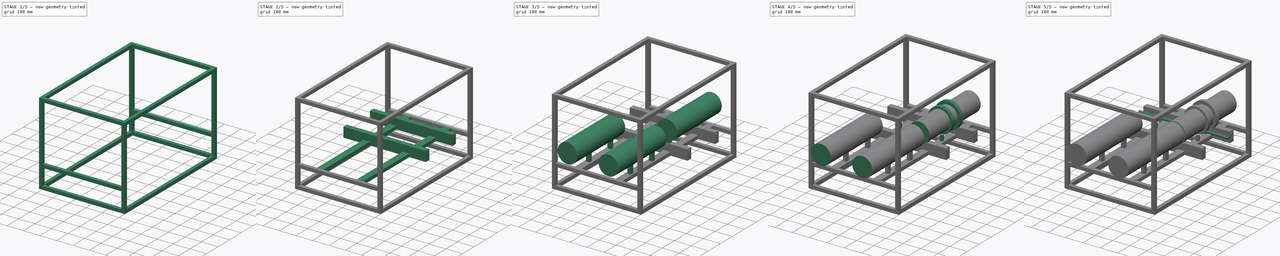
[diagram: build sequence overview — one tinted view per stage of 5, left to right]
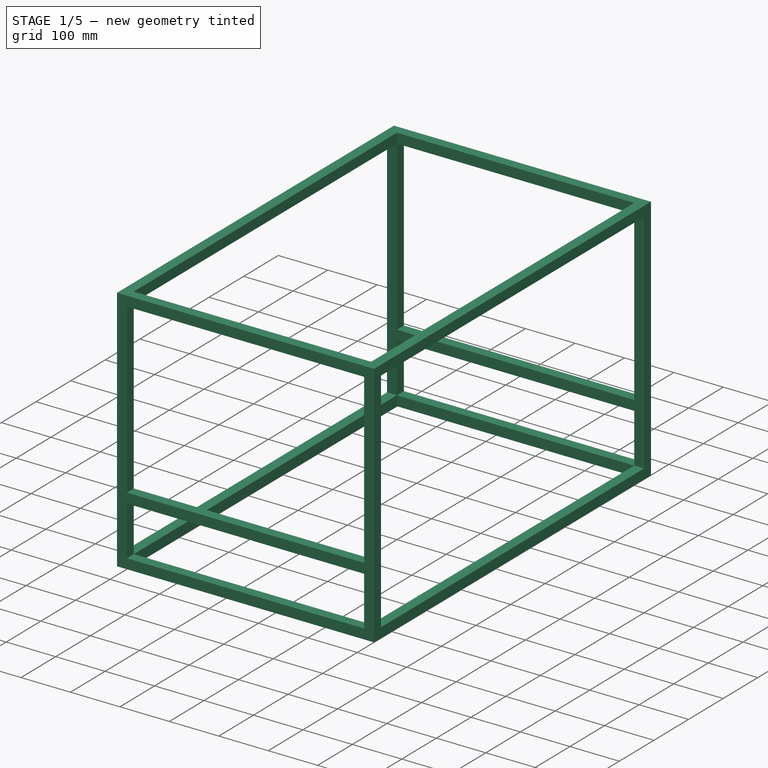
[diagram: stage 1 of 5 — iso view after this stage's code; geometry added in this stage tinted green]
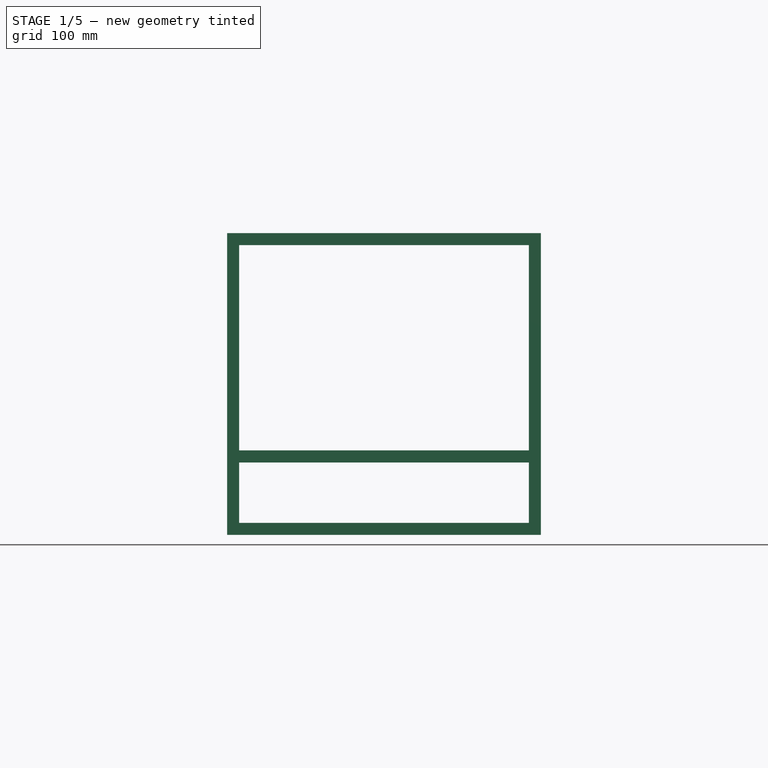
[diagram: stage 1 of 5 — front view after this stage's code; geometry added in this stage tinted green]
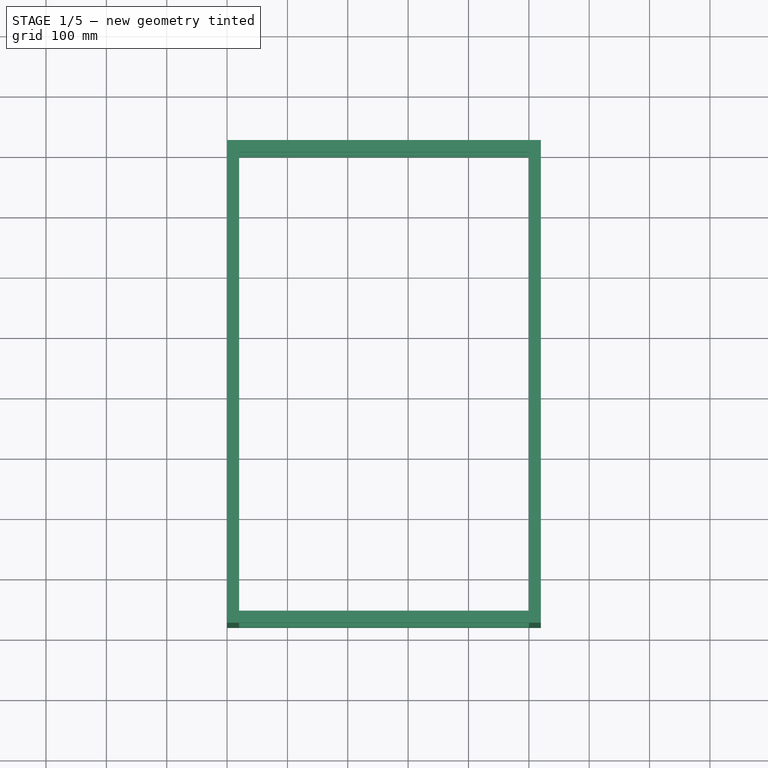
[diagram: stage 1 of 5 — top view after this stage's code; geometry added in this stage tinted green]
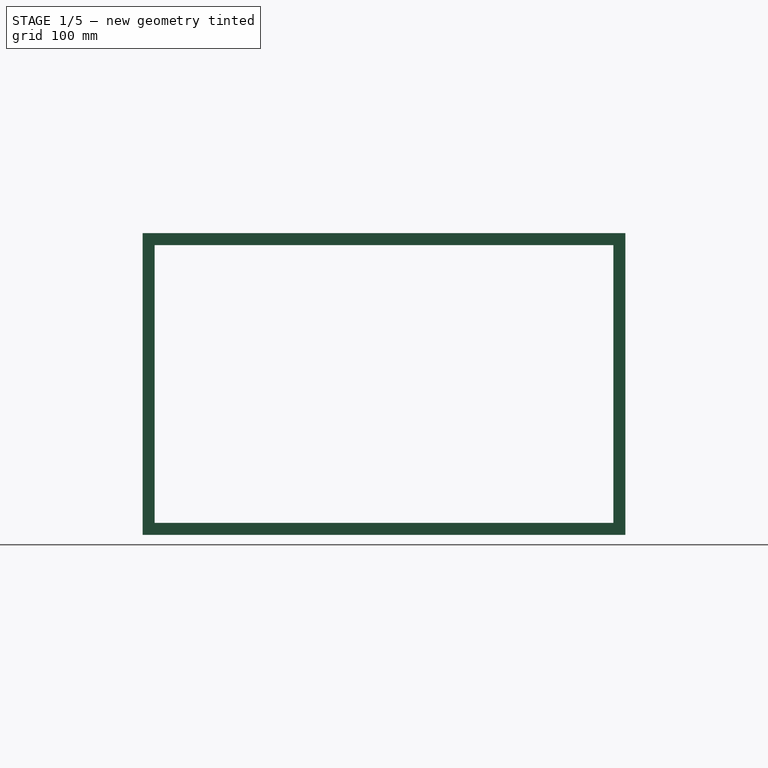
[diagram: stage 1 of 5 — right view after this stage's code; geometry added in this stage tinted green]
FCSTD DOCUMENT  (FreeCAD 1.0R39109 (Git))
Label: swnewfram
License: All rights reserved
LicenseURL: https://en.wikipedia.org/wiki/All_rights_reserved
objects: PartDesign::Pad×32, Sketcher::SketchObject×24, PartDesign::Pocket×3, PartDesign::Plane×2, PartDesign::Body×1
note: 156 computed .brp shape members not serialized (recipe doc carries the construction recipe); baked Part::Feature solids carry a one-line shape summary decoded from their .brp

FEATURE [Sketcher::SketchObject] Sketch
  ArcFitTolerance = 1e-06
  AttachmentSupport = -> [XY_Plane]
  FullyConstrained = true
  MakeInternals = false
  MapMode = 5
  sketch-geometry (4):
    g0: LineSegment StartX=0 StartY=0 StartZ=0 EndX=20 EndY=0 EndZ=0
    g1: LineSegment StartX=20 StartY=0 StartZ=0 EndX=20 EndY=20 EndZ=0
    g2: LineSegment StartX=20 StartY=20 StartZ=0 EndX=0 EndY=20 EndZ=0
    g3: LineSegment StartX=0 StartY=20 StartZ=0 EndX=0 EndY=0 EndZ=0
  constraints (11):
    c: Coincident(g0,g1)
    c: Coincident(g1,g2)
    c: Coincident(g2,g3)
    c: Coincident(g3,g0)
    c: Horizontal(g0)
    c: Horizontal(g2)
    c: Vertical(g1)
    c: Vertical(g3)
    c: Distance(g1,g3) = 20
    c: Distance(g0,g2) = 20
    c: Coincident(g0,g-1)
FEATURE [PartDesign::Pad] Pad
  Direction = (0,0,1)
  Length = 500
  Length2 = 10
  Profile = -> Sketch
  ReferenceAxis = -> Sketch [N_Axis]
  Refine = true
  Suppressed = false
  Type = 0
FEATURE [Sketcher::SketchObject] Sketch001
  ArcFitTolerance = 1e-06
  AttachmentSupport = -> [Pad]
  FullyConstrained = true
  MakeInternals = false
  MapMode = 5
  Placement = pos=(0,0,0) rot=(1,0,0;1.5708rad)
  sketch-geometry (8):
    g0: LineSegment StartX=0 StartY=0 StartZ=0 EndX=20 EndY=0 EndZ=0
    g1: LineSegment StartX=20 StartY=0 StartZ=0 EndX=20 EndY=20 EndZ=0
    g2: LineSegment StartX=20 StartY=20 StartZ=0 EndX=0 EndY=20 EndZ=0
    g3: LineSegment StartX=0 StartY=20 StartZ=0 EndX=0 EndY=0 EndZ=0
    g4: LineSegment StartX=0 StartY=500 StartZ=0 EndX=0 EndY=480 EndZ=0
    g5: LineSegment StartX=0 StartY=480 StartZ=0 EndX=20 EndY=480 EndZ=0
    g6: LineSegment StartX=20 StartY=480 StartZ=0 EndX=20 EndY=500 EndZ=0
    g7: LineSegment StartX=20 StartY=500 StartZ=0 EndX=0 EndY=500 EndZ=0
  constraints (23):
    c: Coincident(g0,g1)
    c: Coincident(g1,g2)
    c: Coincident(g2,g3)
    c: Coincident(g3,g0)
    c: Horizontal(g0)
    c: Horizontal(g2)
    c: Vertical(g1)
    c: Vertical(g3)
    c: Distance(g1,g3) = 20
    c: Distance(g0,g2) = 20
    c: Coincident(g0,g-1)
    c: Coincident(g4,g5)
    c: Coincident(g5,g6)
    c: Coincident(g6,g7)
    c: Coincident(g7,g4)
    c: Vertical(g4)
    c: Vertical(g6)
    c: Horizontal(g5)
    c: Horizontal(g7)
    c: Distance(g4,g6) = 20
    c: Distance(g5,g7) = 20
    c: DistanceX(g2,g4) = 0
    c: DistanceY(g0,g4) = 500
FEATURE [PartDesign::Pad] Pad001
  BaseFeature = -> Pad
  Direction = (0,-1,2e-16)
  Length = 780
  Length2 = 10
  Profile = -> Sketch001
  ReferenceAxis = -> Sketch001 [N_Axis]
  Refine = true
  Suppressed = false
  Type = 0
FEATURE [Sketcher::SketchObject] Sketch002
  ArcFitTolerance = 1e-06
  AttachmentSupport = -> [Pad001]
  FullyConstrained = true
  MakeInternals = false
  MapMode = 5
  Placement = pos=(0,4.4e-15,20) rot=(0,0,1;0rad)
  sketch-geometry (4):
    g0: LineSegment StartX=0 StartY=-760 StartZ=0 EndX=0 EndY=-780 EndZ=0
    g1: LineSegment StartX=0 StartY=-780 StartZ=0 EndX=20 EndY=-780 EndZ=0
    g2: LineSegment StartX=20 StartY=-780 StartZ=0 EndX=20 EndY=-760 EndZ=0
    g3: LineSegment StartX=20 StartY=-760 StartZ=0 EndX=0 EndY=-760 EndZ=0
  constraints (12):
    c: Coincident(g0,g1)
    c: Coincident(g1,g2)
    c: Coincident(g2,g3)
    c: Coincident(g3,g0)
    c: Vertical(g0)
    c: Vertical(g2)
    c: Horizontal(g1)
    c: Horizontal(g3)
    c: Distance(g0,g2) = 20
    c: Distance(g1,g3) = 20
    c: PointOnObject(g0,g-2)
    c: DistanceY(g0,g-1) = 760
FEATURE [PartDesign::Pad] Pad002
  BaseFeature = -> Pad001
  Direction = (0,0,1)
  Length = 480
  Length2 = 10
  Profile = -> Sketch002
  ReferenceAxis = -> Sketch002 [N_Axis]
  Refine = true
  Suppressed = false
  Type = 0
FEATURE [Sketcher::SketchObject] Sketch003
  ArcFitTolerance = 1e-06
  AttachmentSupport = -> [Pad002]
  FullyConstrained = true
  MakeInternals = false
  MapMode = 5
  Placement = pos=(0,0,0) rot=(0.57735,-0.57735,-0.57735;2.0944rad)
  sketch-geometry (16):
    g0: LineSegment StartX=0 StartY=0 StartZ=0 EndX=0 EndY=20 EndZ=0
    g1: LineSegment StartX=0 StartY=20 StartZ=0 EndX=-20 EndY=20 EndZ=0
    g2: LineSegment StartX=-20 StartY=20 StartZ=0 EndX=-20 EndY=0 EndZ=0
    g3: LineSegment StartX=-20 StartY=0 StartZ=0 EndX=0 EndY=0 EndZ=0
    g4: LineSegment StartX=760 StartY=20 StartZ=0 EndX=760 EndY=0 EndZ=0
    g5: LineSegment StartX=760 StartY=0 StartZ=0 EndX=780 EndY=0 EndZ=0
    g6: LineSegment StartX=780 StartY=0 StartZ=0 EndX=780 EndY=20 EndZ=0
    g7: LineSegment StartX=780 StartY=20 StartZ=0 EndX=760 EndY=20 EndZ=0
    g8: LineSegment StartX=0 StartY=480 StartZ=0 EndX=0 EndY=500 EndZ=0
    g9: LineSegment StartX=0 StartY=500 StartZ=0 EndX=-20 EndY=500 EndZ=0
    g10: LineSegment StartX=-20 StartY=500 StartZ=0 EndX=-20 EndY=480 EndZ=0
    g11: LineSegment StartX=-20 StartY=480 StartZ=0 EndX=0 EndY=480 EndZ=0
    g12: LineSegment StartX=760 StartY=500 StartZ=0 EndX=760 EndY=480 EndZ=0
    g13: LineSegment StartX=760 StartY=480 StartZ=0 EndX=780 EndY=480 EndZ=0
    g14: LineSegment StartX=780 StartY=480 StartZ=0 EndX=780 EndY=500 EndZ=0
    g15: LineSegment StartX=780 StartY=500 StartZ=0 EndX=760 EndY=500 EndZ=0
  constraints (47):
    c: Coincident(g0,g1)
    c: Coincident(g1,g2)
    c: Coincident(g2,g3)
    c: Coincident(g3,g0)
    c: Vertical(g0)
    c: Vertical(g2)
    c: Horizontal(g1)
    c: Horizontal(g3)
    c: Distance(g0,g2) = 20
    c: Distance(g1,g3) = 20
    c: Coincident(g0,g-1)
    c: Coincident(g4,g5)
    c: Coincident(g5,g6)
    c: Coincident(g6,g7)
    c: Coincident(g7,g4)
    c: Vertical(g4)
    c: Vertical(g6)
    c: Horizontal(g5)
    c: Horizontal(g7)
    c: Distance(g4,g6) = 20
    c: Distance(g5,g7) = 20
    c: PointOnObject(g4,g-1)
    c: DistanceX(g0,g4) = 760
    c: Coincident(g8,g9)
    c: Coincident(g9,g10)
    c: Coincident(g10,g11)
    c: Coincident(g11,g8)
    c: Vertical(g8)
    c: Vertical(g10)
    c: Horizontal(g9)
    c: Horizontal(g11)
    c: Distance(g8,g10) = 20
    c: Distance(g9,g11) = 20
    c: PointOnObject(g8,g-2)
    c: Coincident(g12,g13)
    c: Coincident(g13,g14)
    c: Coincident(g14,g15)
    c: Coincident(g15,g12)
    c: Vertical(g12)
    c: Vertical(g14)
    c: Horizontal(g13)
    c: Horizontal(g15)
    c: Distance(g12,g14) = 20
    c: Distance(g13,g15) = 20
    c: DistanceX(g4,g12) = 0
    c: DistanceY(g6,g13) = 460
    c: DistanceY(g1,g10) = 460
FEATURE [PartDesign::Pad] Pad003
  BaseFeature = -> Pad002
  Direction = (-1,0,0)
  Length = 500
  Length2 = 10
  Profile = -> Sketch003
  ReferenceAxis = -> Sketch003 [N_Axis]
  Refine = true
  Suppressed = false
  Type = 0
FEATURE [Sketcher::SketchObject] Sketch004
  ArcFitTolerance = 1e-06
  AttachmentSupport = -> [Pad003]
  FullyConstrained = true
  MakeInternals = false
  MapMode = 5
  Placement = pos=(0,0,0) rot=(1,0,0;1.5708rad)
  sketch-geometry (8):
    g0: LineSegment StartX=-500 StartY=20 StartZ=0 EndX=-500 EndY=0 EndZ=0
    g1: LineSegment StartX=-500 StartY=0 StartZ=0 EndX=-480 EndY=0 EndZ=0
    g2: LineSegment StartX=-480 StartY=0 StartZ=0 EndX=-480 EndY=20 EndZ=0
    g3: LineSegment StartX=-480 StartY=20 StartZ=0 EndX=-500 EndY=20 EndZ=0
    g4: LineSegment StartX=-500 StartY=500 StartZ=0 EndX=-500 EndY=480 EndZ=0
    g5: LineSegment StartX=-500 StartY=480 StartZ=0 EndX=-480 EndY=480 EndZ=0
    g6: LineSegment StartX=-480 StartY=480 StartZ=0 EndX=-480 EndY=500 EndZ=0
    g7: LineSegment StartX=-480 StartY=500 StartZ=0 EndX=-500 EndY=500 EndZ=0
  constraints (24):
    c: Coincident(g0,g1)
    c: Coincident(g1,g2)
    c: Coincident(g2,g3)
    c: Coincident(g3,g0)
    c: Vertical(g0)
    c: Vertical(g2)
    c: Horizontal(g1)
    c: Horizontal(g3)
    c: Distance(g0,g2) = 20
    c: Distance(g1,g3) = 20
    c: PointOnObject(g1,g-1)
    c: DistanceX(g1,g-1) = 480
    c: Coincident(g4,g5)
    c: Coincident(g5,g6)
    c: Coincident(g6,g7)
    c: Coincident(g7,g4)
    c: Vertical(g4)
    c: Vertical(g6)
    c: Horizontal(g5)
    c: Horizontal(g7)
    c: Distance(g4,g6) = 20
    c: Distance(g5,g7) = 20
    c: DistanceX(g2,g5) = 0
    c: DistanceY(g0,g4) = 460
FEATURE [PartDesign::Pad] Pad004
  BaseFeature = -> Pad003
  Direction = (0,-1,2e-16)
  Length = 760
  Length2 = 10
  Profile = -> Sketch004
  ReferenceAxis = -> Sketch004 [N_Axis]
  Refine = true
  Suppressed = false
  Type = 0
FEATURE [Sketcher::SketchObject] Sketch005
  ArcFitTolerance = 1e-06
  AttachmentSupport = -> [Pad004]
  FullyConstrained = true
  MakeInternals = false
  MapMode = 5
  Placement = pos=(0,0,480) rot=(1,0,0;3.14159rad)
  sketch-geometry (8):
    g0: LineSegment StartX=-500 StartY=-20 StartZ=0 EndX=-480 EndY=-20 EndZ=0
    g1: LineSegment StartX=-480 StartY=-20 StartZ=0 EndX=-480 EndY=0 EndZ=0
    g2: LineSegment StartX=-480 StartY=0 StartZ=0 EndX=-500 EndY=0 EndZ=0
    g3: LineSegment StartX=-500 StartY=0 StartZ=0 EndX=-500 EndY=-20 EndZ=0
    g4: LineSegment StartX=-500 StartY=780 StartZ=0 EndX=-500 EndY=760 EndZ=0
    g5: LineSegment StartX=-500 StartY=760 StartZ=0 EndX=-480 EndY=760 EndZ=0
    g6: LineSegment StartX=-480 StartY=760 StartZ=0 EndX=-480 EndY=780 EndZ=0
    g7: LineSegment StartX=-480 StartY=780 StartZ=0 EndX=-500 EndY=780 EndZ=0
  constraints (24):
    c: Coincident(g0,g1)
    c: Coincident(g1,g2)
    c: Coincident(g2,g3)
    c: Coincident(g3,g0)
    c: Horizontal(g0)
    c: Horizontal(g2)
    c: Vertical(g1)
    c: Vertical(g3)
    c: Distance(g1,g3) = 20
    c: Distance(g0,g2) = 20
    c: Coincident(g4,g5)
    c: Coincident(g5,g6)
    c: Coincident(g6,g7)
    c: Coincident(g7,g4)
    c: Vertical(g4)
    c: Vertical(g6)
    c: Horizontal(g5)
    c: Horizontal(g7)
    c: Distance(g4,g6) = 20
    c: Distance(g5,g7) = 20
    c: DistanceX(g5,g1) = 0
    c: DistanceY(g1,g5) = 760
    c: DistanceY(g0,g-1) = 20
    c: DistanceX(g0,g-1) = 480
FEATURE [PartDesign::Pad] Pad005
  BaseFeature = -> Pad004
  Direction = (0,0,-1)
  Length = 460
  Length2 = 10
  Profile = -> Sketch005
  ReferenceAxis = -> Sketch005 [N_Axis]
  Refine = true
  Suppressed = false
  Type = 0
FEATURE [Sketcher::SketchObject] Sketch006
  ArcFitTolerance = 1e-06
  AttachmentSupport = -> [Pad005]
  FullyConstrained = true
  MakeInternals = false
  MapMode = 5
  Placement = pos=(-480,0,0) rot=(0.57735,0.57735,0.57735;2.0944rad)
  sketch-geometry (8):
    g0: LineSegment StartX=-780 StartY=140 StartZ=0 EndX=-780 EndY=120 EndZ=0
    g1: LineSegment StartX=-780 StartY=120 StartZ=0 EndX=-760 EndY=120 EndZ=0
    g2: LineSegment StartX=-760 StartY=120 StartZ=0 EndX=-760 EndY=140 EndZ=0
    g3: LineSegment StartX=-760 StartY=140 StartZ=0 EndX=-780 EndY=140 EndZ=0
    g4: LineSegment StartX=0 StartY=140 StartZ=0 EndX=0 EndY=120 EndZ=0
    g5: LineSegment StartX=0 StartY=120 StartZ=0 EndX=20 EndY=120 EndZ=0
    g6: LineSegment StartX=20 StartY=120 StartZ=0 EndX=20 EndY=140 EndZ=0
    g7: LineSegment StartX=20 StartY=140 StartZ=0 EndX=0 EndY=140 EndZ=0
  constraints (24):
    c: Coincident(g0,g1)
    c: Coincident(g1,g2)
    c: Coincident(g2,g3)
    c: Coincident(g3,g0)
    c: Vertical(g0)
    c: Vertical(g2)
    c: Horizontal(g1)
    c: Horizontal(g3)
    c: Distance(g0,g2) = 20
    c: Distance(g1,g3) = 20
    c: Coincident(g4,g5)
    c: Coincident(g5,g6)
    c: Coincident(g6,g7)
    c: Coincident(g7,g4)
    c: Vertical(g4)
    c: Vertical(g6)
    c: Horizontal(g5)
    c: Horizontal(g7)
    c: Distance(g4,g6) = 20
    c: Distance(g5,g7) = 20
    c: PointOnObject(g4,g-2)
    c: DistanceY(g-1,g5) = 120
    c: DistanceY(g1,g4) = 20
    c: DistanceX(g1,g4) = 760
FEATURE [PartDesign::Pad] Pad006
  BaseFeature = -> Pad005
  Direction = (1,0,0)
  Length = 480
  Length2 = 10
  Profile = -> Sketch006
  ReferenceAxis = -> Sketch006 [N_Axis]
  Refine = true
  Suppressed = false
  Type = 0
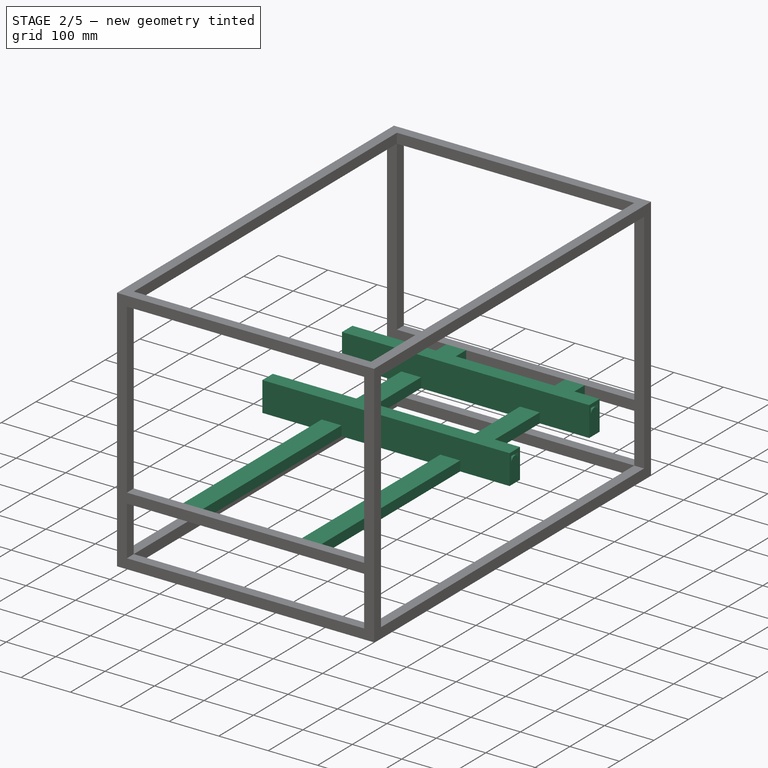
[diagram: stage 2 of 5 — iso view after this stage's code; geometry added in this stage tinted green]
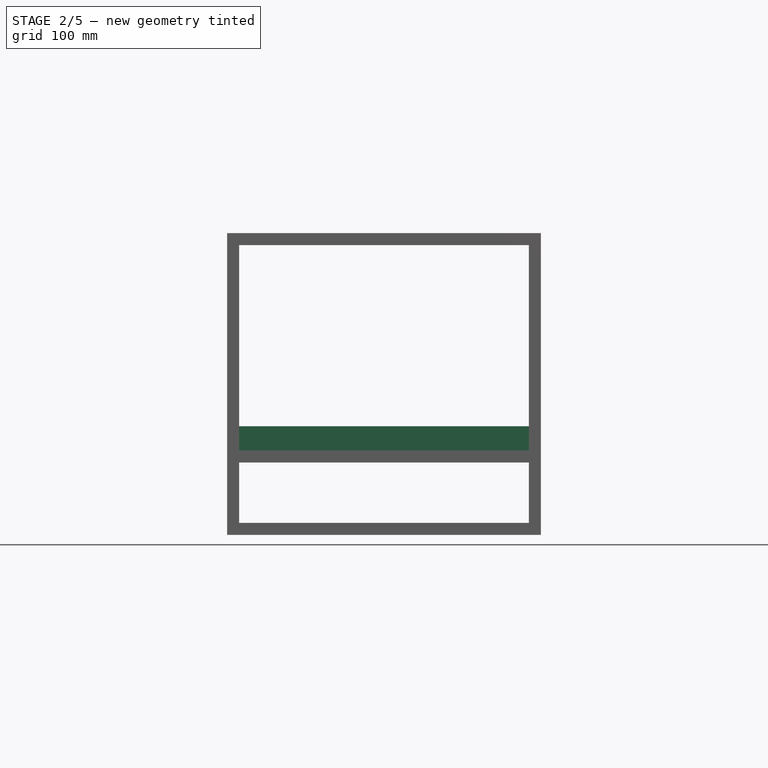
[diagram: stage 2 of 5 — front view after this stage's code; geometry added in this stage tinted green]
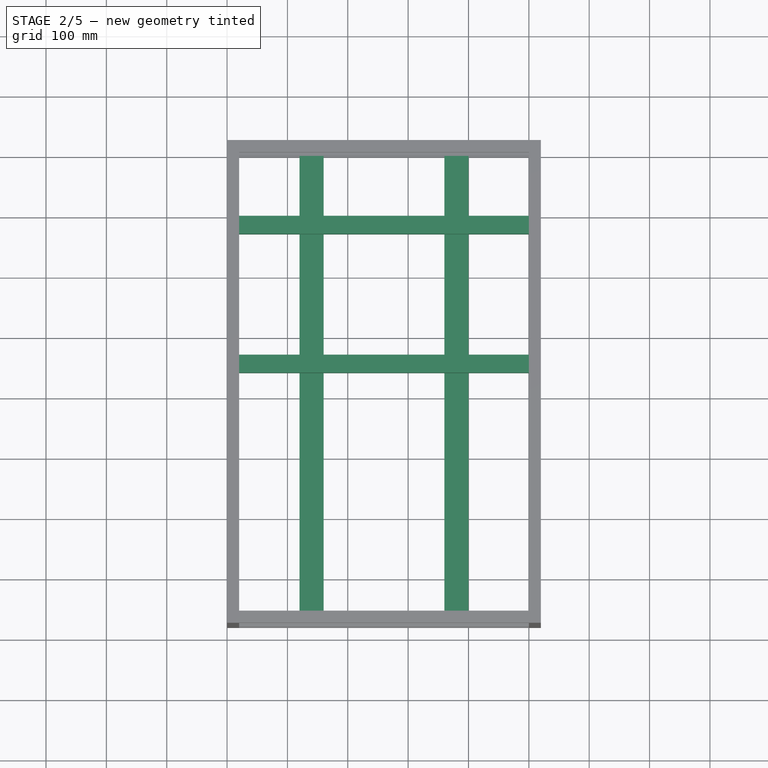
[diagram: stage 2 of 5 — top view after this stage's code; geometry added in this stage tinted green]
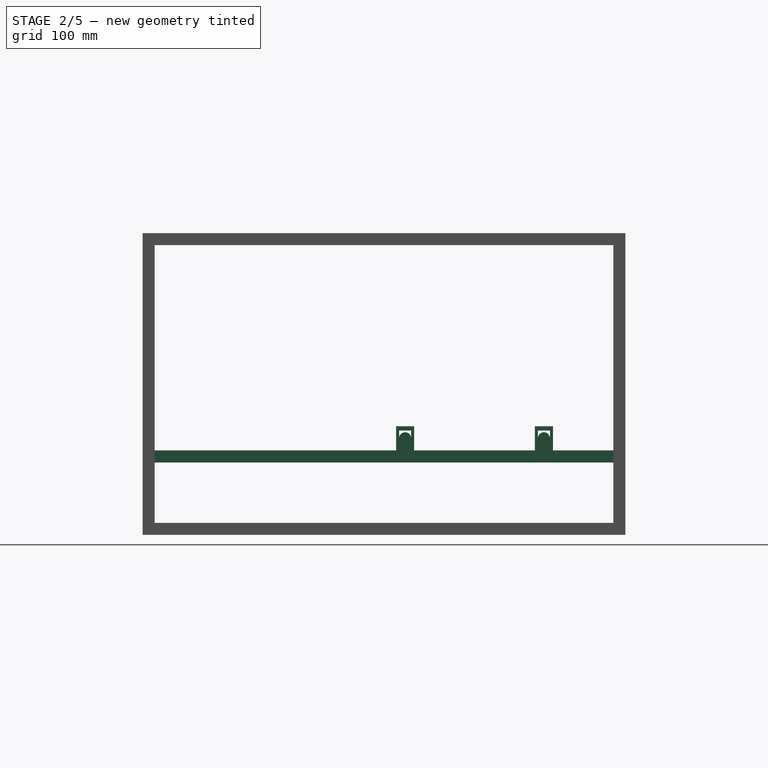
[diagram: stage 2 of 5 — right view after this stage's code; geometry added in this stage tinted green]
FEATURE [Sketcher::SketchObject] Sketch007
  ArcFitTolerance = 1e-06
  AttachmentSupport = -> [Pad006]
  FullyConstrained = true
  MakeInternals = false
  MapMode = 5
  Placement = pos=(0,-760,0) rot=(0,0.707107,0.707107;3.14159rad)
  sketch-geometry (8):
    g0: LineSegment StartX=100 StartY=140 StartZ=0 EndX=100 EndY=120 EndZ=0
    g1: LineSegment StartX=100 StartY=120 StartZ=0 EndX=140 EndY=120 EndZ=0
    g2: LineSegment StartX=140 StartY=120 StartZ=0 EndX=140 EndY=140 EndZ=0
    g3: LineSegment StartX=140 StartY=140 StartZ=0 EndX=100 EndY=140 EndZ=0
    g4: LineSegment StartX=340 StartY=140 StartZ=0 EndX=340 EndY=120 EndZ=0
    g5: LineSegment StartX=340 StartY=120 StartZ=0 EndX=380 EndY=120 EndZ=0
    g6: LineSegment StartX=380 StartY=120 StartZ=0 EndX=380 EndY=140 EndZ=0
    g7: LineSegment StartX=380 StartY=140 StartZ=0 EndX=340 EndY=140 EndZ=0
  constraints (24):
    c: Coincident(g0,g1)
    c: Coincident(g1,g2)
    c: Coincident(g2,g3)
    c: Coincident(g3,g0)
    c: Vertical(g0)
    c: Vertical(g2)
    c: Horizontal(g1)
    c: Horizontal(g3)
    c: Distance(g0,g2) = 40
    c: Distance(g1,g3) = 20
    c: Coincident(g4,g5)
    c: Coincident(g5,g6)
    c: Coincident(g6,g7)
    c: Coincident(g7,g4)
    c: Vertical(g4)
    c: Vertical(g6)
    c: Horizontal(g5)
    c: Horizontal(g7)
    c: Distance(g4,g6) = 40
    c: Distance(g5,g7) = 20
    c: DistanceX(g-1,g0) = 100
    c: DistanceX(g2,g4) = 200
    c: DistanceY(g4,g1) = 0
    c: DistanceY(g-1,g0) = 120
FEATURE [PartDesign::Pad] Pad007
  BaseFeature = -> Pad006
  Direction = (0,1,-2e-16)
  Length = 760
  Length2 = 10
  Profile = -> Sketch007
  ReferenceAxis = -> Sketch007 [N_Axis]
  Refine = true
  Suppressed = false
  Type = 0
FEATURE [Sketcher::SketchObject] Sketch008
  ArcFitTolerance = 1e-06
  AttachmentSupport = -> [Pad007]
  FullyConstrained = true
  MakeInternals = false
  MapMode = 5
  Placement = pos=(0,0,140) rot=(0,0,1;0rad)
  sketch-geometry (8):
    g0: LineSegment StartX=-500 StartY=-130 StartZ=0 EndX=0 EndY=-130 EndZ=0
    g1: LineSegment StartX=0 StartY=-130 StartZ=0 EndX=0 EndY=-100 EndZ=0
    g2: LineSegment StartX=0 StartY=-100 StartZ=0 EndX=-500 EndY=-100 EndZ=0
    g3: LineSegment StartX=-500 StartY=-100 StartZ=0 EndX=-500 EndY=-130 EndZ=0
    g4: LineSegment StartX=-500 StartY=-330 StartZ=0 EndX=-500 EndY=-360 EndZ=0
    g5: LineSegment StartX=-500 StartY=-360 StartZ=0 EndX=0 EndY=-360 EndZ=0
    g6: LineSegment StartX=0 StartY=-360 StartZ=0 EndX=0 EndY=-330 EndZ=0
    g7: LineSegment StartX=0 StartY=-330 StartZ=0 EndX=-500 EndY=-330 EndZ=0
  constraints (24):
    c: Coincident(g0,g1)
    c: Coincident(g1,g2)
    c: Coincident(g2,g3)
    c: Coincident(g3,g0)
    c: Horizontal(g0)
    c: Horizontal(g2)
    c: Vertical(g1)
    c: Vertical(g3)
    c: Distance(g1,g3) = 500
    c: Distance(g0,g2) = 30
    c: Coincident(g4,g5)
    c: Coincident(g5,g6)
    c: Coincident(g6,g7)
    c: Coincident(g7,g4)
    c: Vertical(g4)
    c: Vertical(g6)
    c: Horizontal(g5)
    c: Horizontal(g7)
    c: Distance(g4,g6) = 500
    c: Distance(g5,g7) = 30
    c: DistanceX(g0,g6) = 0
    c: DistanceY(g1,g-1) = 100
    c: DistanceY(g6,g0) = 200
    c: DistanceX(g-1,g1) = 0
FEATURE [PartDesign::Pad] Pad008
  BaseFeature = -> Pad007
  Direction = (0,0,1)
  Length = 20
  Length2 = 10
  Profile = -> Sketch008
  ReferenceAxis = -> Sketch008 [N_Axis]
  Refine = true
  Suppressed = false
  Type = 0
FEATURE [PartDesign::Pad] Pad009
  BaseFeature = -> Pad008
  Direction = (0,0,1)
  Length = 20
  Length2 = 10
  Profile = -> Sketch008
  ReferenceAxis = -> Sketch008 [N_Axis]
  Refine = true
  Reversed = true
  Suppressed = false
  Type = 0
FEATURE [Sketcher::SketchObject] Sketch009
  ArcFitTolerance = 1e-06
  AttachmentSupport = -> [Pad009]
  FullyConstrained = true
  MakeInternals = false
  MapMode = 5
  Placement = pos=(0,0,0) rot=(0.57735,0.57735,0.57735;2.0944rad)
  sketch-geometry (2):
    g0: Circle CenterX=-345 CenterY=160 CenterZ=0 NormalX=0 NormalY=0 NormalZ=1 AngleXU=0 Radius=10
    g1: Circle CenterX=-115 CenterY=160 CenterZ=0 NormalX=0 NormalY=0 NormalZ=1 AngleXU=0 Radius=10
  constraints (6):
    c: Diameter(g0) = 20
    c: Diameter(g1) = 20
    c: DistanceY(g1,g0) = 0
    c: DistanceY(g-1,g1) = 160
    c: DistanceX(g1,g-1) = 115
    c: DistanceX(g0,g1) = 230
FEATURE [PartDesign::Pad] Pad010
  BaseFeature = -> Pad009
  Direction = (1,0,0)
  Length = 500
  Length2 = 10
  Profile = -> Sketch009
  ReferenceAxis = -> Sketch009 [N_Axis]
  Refine = true
  Reversed = true
  Suppressed = false
  Type = 0
FEATURE [PartDesign::Pad] Pad011
  BaseFeature = -> Pad010
  Direction = (0,0,1)
  Length = 20
  Length2 = 10
  Profile = -> Pad010 [Face56,Face57,Face61,Face60]
  Refine = true
  Suppressed = false
  Type = 0
FEATURE [Sketcher::SketchObject] Sketch010
  ArcFitTolerance = 1e-06
  AttachmentSupport = -> [Pad011]
  FullyConstrained = true
  MakeInternals = false
  MapMode = 5
  Placement = pos=(0,-335,0) rot=(1,0,0;1.5708rad)
  sketch-geometry (4):
    g0: LineSegment StartX=-500 StartY=180 StartZ=0 EndX=-500 EndY=173 EndZ=0
    g1: LineSegment StartX=-500 StartY=173 StartZ=0 EndX=0 EndY=173 EndZ=0
    g2: LineSegment StartX=0 StartY=173 StartZ=0 EndX=0 EndY=180 EndZ=0
    g3: LineSegment StartX=0 StartY=180 StartZ=0 EndX=-500 EndY=180 EndZ=0
  constraints (12):
    c: Coincident(g0,g1)
    c: Coincident(g1,g2)
    c: Coincident(g2,g3)
    c: Coincident(g3,g0)
    c: Vertical(g0)
    c: Vertical(g2)
    c: Horizontal(g1)
    c: Horizontal(g3)
    c: Distance(g0,g2) = 500
    c: Distance(g1,g3) = 7
    c: DistanceX(g-1,g1) = 0
    c: DistanceY(g-1,g2) = 180
FEATURE [PartDesign::Pad] Pad012
  BaseFeature = -> Pad011
  Direction = (0,-1,2e-16)
  Length = 20
  Length2 = 10
  Profile = -> Sketch010
  ReferenceAxis = -> Sketch010 [N_Axis]
  Refine = true
  Suppressed = false
  Type = 0
FEATURE [Sketcher::SketchObject] Sketch011
  ArcFitTolerance = 1e-06
  AttachmentSupport = -> [Pad012]
  FullyConstrained = true
  MakeInternals = false
  MapMode = 5
  Placement = pos=(0,-105,0) rot=(1,0,0;1.5708rad)
  sketch-geometry (4):
    g0: LineSegment StartX=-500 StartY=180 StartZ=0 EndX=-500 EndY=173 EndZ=0
    g1: LineSegment StartX=-500 StartY=173 StartZ=0 EndX=0 EndY=173 EndZ=0
    g2: LineSegment StartX=0 StartY=173 StartZ=0 EndX=0 EndY=180 EndZ=0
    g3: LineSegment StartX=0 StartY=180 StartZ=0 EndX=-500 EndY=180 EndZ=0
  constraints (12):
    c: Coincident(g0,g1)
    c: Coincident(g1,g2)
    c: Coincident(g2,g3)
    c: Coincident(g3,g0)
    c: Vertical(g0)
    c: Vertical(g2)
    c: Horizontal(g1)
    c: Horizontal(g3)
    c: Distance(g0,g2) = 500
    c: Distance(g1,g3) = 7
    c: DistanceX(g-1,g2) = 0
    c: DistanceY(g-1,g1) = 173
FEATURE [PartDesign::Pad] Pad013
  BaseFeature = -> Pad012
  Direction = (0,-1,2e-16)
  Length = 20
  Length2 = 10
  Profile = -> Sketch011
  ReferenceAxis = -> Sketch011 [N_Axis]
  Refine = true
  Suppressed = false
  Type = 0
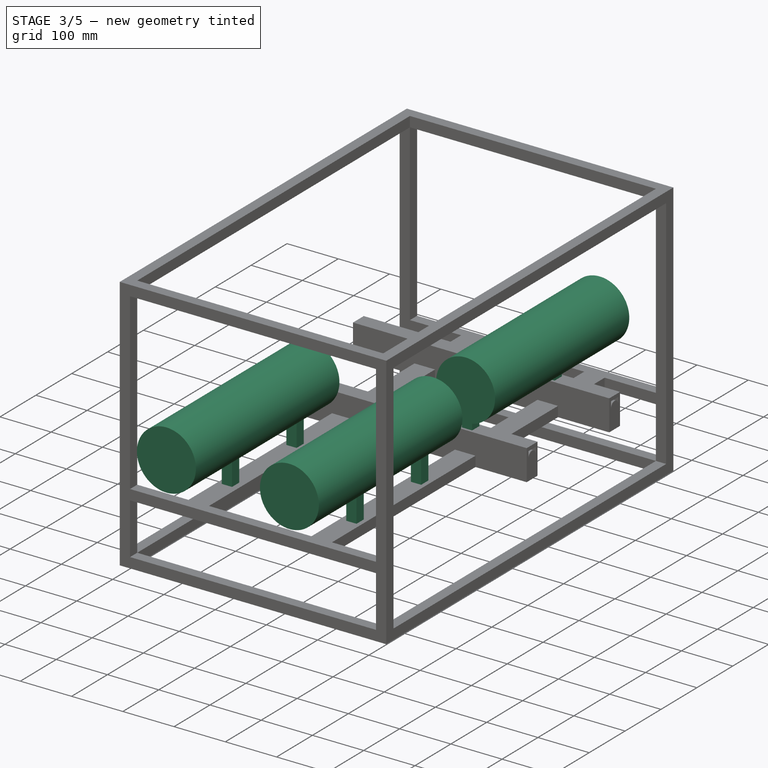
[diagram: stage 3 of 5 — iso view after this stage's code; geometry added in this stage tinted green]
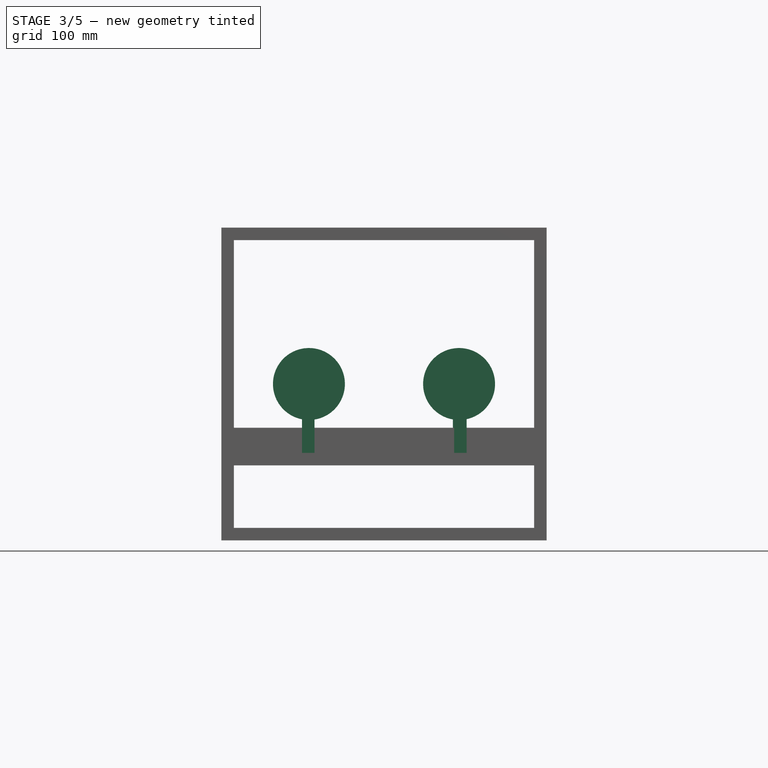
[diagram: stage 3 of 5 — front view after this stage's code; geometry added in this stage tinted green]
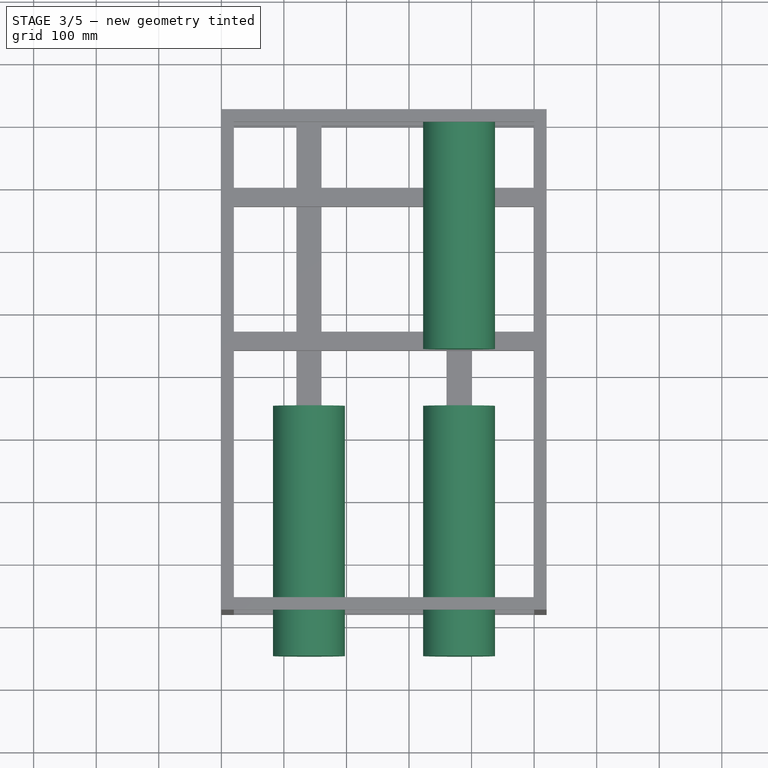
[diagram: stage 3 of 5 — top view after this stage's code; geometry added in this stage tinted green]
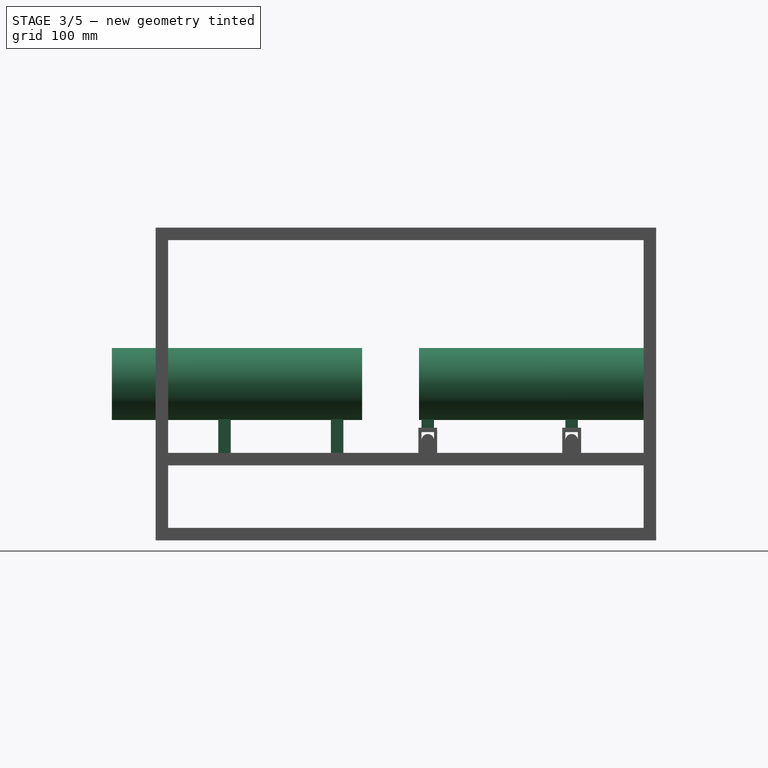
[diagram: stage 3 of 5 — right view after this stage's code; geometry added in this stage tinted green]
FEATURE [Sketcher::SketchObject] Sketch012
  ArcFitTolerance = 1e-06
  AttachmentSupport = -> [Pad013]
  FullyConstrained = true
  MakeInternals = false
  MapMode = 5
  Placement = pos=(0,0,180) rot=(0,0,1;0rad)
  sketch-geometry (8):
    g0: LineSegment StartX=-130 StartY=-105 StartZ=0 EndX=-130 EndY=-125 EndZ=0
    g1: LineSegment StartX=-130 StartY=-125 StartZ=0 EndX=-110 EndY=-125 EndZ=0
    g2: LineSegment StartX=-110 StartY=-125 StartZ=0 EndX=-110 EndY=-105 EndZ=0
    g3: LineSegment StartX=-110 StartY=-105 StartZ=0 EndX=-130 EndY=-105 EndZ=0
    g4: LineSegment StartX=-130 StartY=-335 StartZ=0 EndX=-130 EndY=-355 EndZ=0
    g5: LineSegment StartX=-130 StartY=-355 StartZ=0 EndX=-110 EndY=-355 EndZ=0
    g6: LineSegment StartX=-110 StartY=-355 StartZ=0 EndX=-110 EndY=-335 EndZ=0
    g7: LineSegment StartX=-110 StartY=-335 StartZ=0 EndX=-130 EndY=-335 EndZ=0
  constraints (24):
    c: Coincident(g0,g1)
    c: Coincident(g1,g2)
    c: Coincident(g2,g3)
    c: Coincident(g3,g0)
    c: Vertical(g0)
    c: Vertical(g2)
    c: Horizontal(g1)
    c: Horizontal(g3)
    c: Distance(g0,g2) = 20
    c: Distance(g1,g3) = 20
    c: Coincident(g4,g5)
    c: Coincident(g5,g6)
    c: Coincident(g6,g7)
    c: Coincident(g7,g4)
    c: Vertical(g4)
    c: Vertical(g6)
    c: Horizontal(g5)
    c: Horizontal(g7)
    c: Distance(g4,g6) = 20
    c: Distance(g5,g7) = 20
    c: DistanceX(g1,g6) = 0
    c: DistanceX(g2,g-1) = 110
    c: DistanceY(g2,g-1) = 105
    c: DistanceY(g6,g1) = 210
FEATURE [PartDesign::Pad] Pad014
  BaseFeature = -> Pad013
  Direction = (0,0,1)
  Length = 70
  Length2 = 10
  Profile = -> Sketch012
  ReferenceAxis = -> Sketch012 [N_Axis]
  Refine = true
  Suppressed = false
  Type = 0
FEATURE [Sketcher::SketchObject] Sketch013
  ArcFitTolerance = 1e-06
  AttachmentSupport = -> [Pad014]
  FullyConstrained = true
  MakeInternals = false
  MapMode = 5
  Placement = pos=(0,-335,0) rot=(0,0.707107,0.707107;3.14159rad)
  sketch-geometry (1):
    g0: Circle CenterX=120 CenterY=250 CenterZ=0 NormalX=0 NormalY=0 NormalZ=1 AngleXU=0 Radius=57.5
  constraints (3):
    c: Diameter(g0) = 115
    c: DistanceX(g-1,g0) = 120
    c: DistanceY(g-1,g0) = 250
FEATURE [PartDesign::Pad] Pad015
  BaseFeature = -> Pad014
  Direction = (0,1,-2e-16)
  Length = 350
  Length2 = 10
  Profile = -> Sketch013
  ReferenceAxis = -> Sketch013 [N_Axis]
  Refine = true
  Suppressed = false
  Type = 0
FEATURE [PartDesign::Pad] Pad016
  BaseFeature = -> Pad015
  Direction = (0,1,-2e-16)
  Length = 24
  Length2 = 10
  Profile = -> Sketch013
  ReferenceAxis = -> Sketch013 [N_Axis]
  Refine = true
  Reversed = true
  Suppressed = false
  Type = 0
FEATURE [Sketcher::SketchObject] Sketch014
  ArcFitTolerance = 1e-06
  AttachmentSupport = -> [Pad016]
  FullyConstrained = true
  MakeInternals = false
  MapMode = 5
  Placement = pos=(0,-359,0) rot=(1,0,0;1.5708rad)
  sketch-geometry (1):
    g0: Circle CenterX=120 CenterY=250 CenterZ=0 NormalX=0 NormalY=0 NormalZ=1 AngleXU=0 Radius=35
  constraints (3):
    c: Diameter(g0) = 70
    c: DistanceX(g-1,g0) = 120
    c: DistanceY(g-1,g0) = 250
FEATURE [PartDesign::Pad] Pad017
  BaseFeature = -> Pad016
  Direction = (0,-1,2e-16)
  Length = 50
  Length2 = 10
  Profile = -> Sketch014
  ReferenceAxis = -> Sketch014 [N_Axis]
  Refine = true
  Suppressed = false
  Type = 0
FEATURE [Sketcher::SketchObject] Sketch015
  ArcFitTolerance = 1e-06
  AttachmentSupport = -> [Pad017]
  FullyConstrained = true
  MakeInternals = false
  MapMode = 5
  Placement = pos=(0,0,140) rot=(0,0,1;0rad)
  sketch-geometry (16):
    g0: LineSegment StartX=-128 StartY=-480 StartZ=0 EndX=-128 EndY=-500 EndZ=0
    g1: LineSegment StartX=-128 StartY=-500 StartZ=0 EndX=-108 EndY=-500 EndZ=0
    g2: LineSegment StartX=-108 StartY=-500 StartZ=0 EndX=-108 EndY=-480 EndZ=0
    g3: LineSegment StartX=-108 StartY=-480 StartZ=0 EndX=-128 EndY=-480 EndZ=0
    g4: LineSegment StartX=-128 StartY=-660 StartZ=0 EndX=-128 EndY=-680 EndZ=0
    g5: LineSegment StartX=-128 StartY=-680 StartZ=0 EndX=-108 EndY=-680 EndZ=0
    g6: LineSegment StartX=-108 StartY=-680 StartZ=0 EndX=-108 EndY=-660 EndZ=0
    g7: LineSegment StartX=-108 StartY=-660 StartZ=0 EndX=-128 EndY=-660 EndZ=0
    g8: LineSegment StartX=-371 StartY=-480 StartZ=0 EndX=-371 EndY=-500 EndZ=0
    g9: LineSegment StartX=-371 StartY=-500 StartZ=0 EndX=-351 EndY=-500 EndZ=0
    g10: LineSegment StartX=-351 StartY=-500 StartZ=0 EndX=-351 EndY=-480 EndZ=0
    g11: LineSegment StartX=-351 StartY=-480 StartZ=0 EndX=-371 EndY=-480 EndZ=0
    g12: LineSegment StartX=-371 StartY=-660 StartZ=0 EndX=-371 EndY=-680 EndZ=0
    g13: LineSegment StartX=-371 StartY=-680 StartZ=0 EndX=-351 EndY=-680 EndZ=0
    g14: LineSegment StartX=-351 StartY=-680 StartZ=0 EndX=-351 EndY=-660 EndZ=0
    g15: LineSegment StartX=-351 StartY=-660 StartZ=0 EndX=-371 EndY=-660 EndZ=0
  constraints (48):
    c: Coincident(g0,g1)
    c: Coincident(g1,g2)
    c: Coincident(g2,g3)
    c: Coincident(g3,g0)
    c: Vertical(g0)
    c: Vertical(g2)
    c: Horizontal(g1)
    c: Horizontal(g3)
    c: Distance(g0,g2) = 20
    c: Distance(g1,g3) = 20
    c: Coincident(g4,g5)
    c: Coincident(g5,g6)
    c: Coincident(g6,g7)
    c: Coincident(g7,g4)
    c: Vertical(g4)
    c: Vertical(g6)
    c: Horizontal(g5)
    c: Horizontal(g7)
    c: Distance(g4,g6) = 20
    c: Distance(g5,g7) = 20
    c: Coincident(g8,g9)
    c: Coincident(g9,g10)
    c: Coincident(g10,g11)
    c: Coincident(g11,g8)
    c: Vertical(g8)
    c: Vertical(g10)
    c: Horizontal(g9)
    c: Horizontal(g11)
    c: Distance(g8,g10) = 20
    c: Distance(g9,g11) = 20
    c: Coincident(g12,g13)
    c: Coincident(g13,g14)
    c: Coincident(g14,g15)
    c: Coincident(g15,g12)
    c: Vertical(g12)
    c: Vertical(g14)
    c: Horizontal(g13)
    c: Horizontal(g15)
    c: Distance(g12,g14) = 20
    c: Distance(g13,g15) = 20
    c: DistanceY(g9,g0) = 0
    c: DistanceY(g4,g14) = 0
    c: DistanceY(g6,g1) = 160
    c: DistanceX(g1,g6) = 0
    c: DistanceX(g14,g9) = 0
    c: DistanceX(g2,g-1) = 108
    c: DistanceY(g2,g-1) = 480
    c: DistanceX(g9,g0) = 223
FEATURE [PartDesign::Pad] Pad018
  BaseFeature = -> Pad017
  Direction = (0,0,1)
  Length = 120
  Length2 = 10
  Profile = -> Sketch015
  ReferenceAxis = -> Sketch015 [N_Axis]
  Refine = true
  Suppressed = false
  Type = 0
FEATURE [Sketcher::SketchObject] Sketch016
  ArcFitTolerance = 1e-06
  AttachmentSupport = -> [Pad018]
  FullyConstrained = true
  MakeInternals = false
  MapMode = 5
  Placement = pos=(0,-500,0) rot=(1,0,0;1.5708rad)
  sketch-geometry (2):
    g0: Circle CenterX=-120 CenterY=250 CenterZ=0 NormalX=0 NormalY=0 NormalZ=1 AngleXU=0 Radius=57.5
    g1: Circle CenterX=-360 CenterY=250 CenterZ=0 NormalX=0 NormalY=0 NormalZ=1 AngleXU=0 Radius=57.5
  constraints (6):
    c: Diameter(g0) = 115
    c: DistanceY(g-1,g0) = 250
    c: DistanceX(g0,g-1) = 120
    c: Diameter(g1) = 115
    c: DistanceX(g1,g0) = 240
    c: DistanceY(g0,g1) = 0
FEATURE [PartDesign::Pad] Pad019
  BaseFeature = -> Pad018
  Direction = (0,-1,2e-16)
  Length = 350
  Length2 = 10
  Profile = -> Sketch016
  ReferenceAxis = -> Sketch016 [N_Axis]
  Refine = true
  Suppressed = false
  Type = 0
FEATURE [PartDesign::Pad] Pad020
  BaseFeature = -> Pad019
  Direction = (0,-1,2e-16)
  Length = 50
  Length2 = 10
  Profile = -> Sketch016
  ReferenceAxis = -> Sketch016 [N_Axis]
  Refine = true
  Reversed = true
  Suppressed = false
  Type = 0
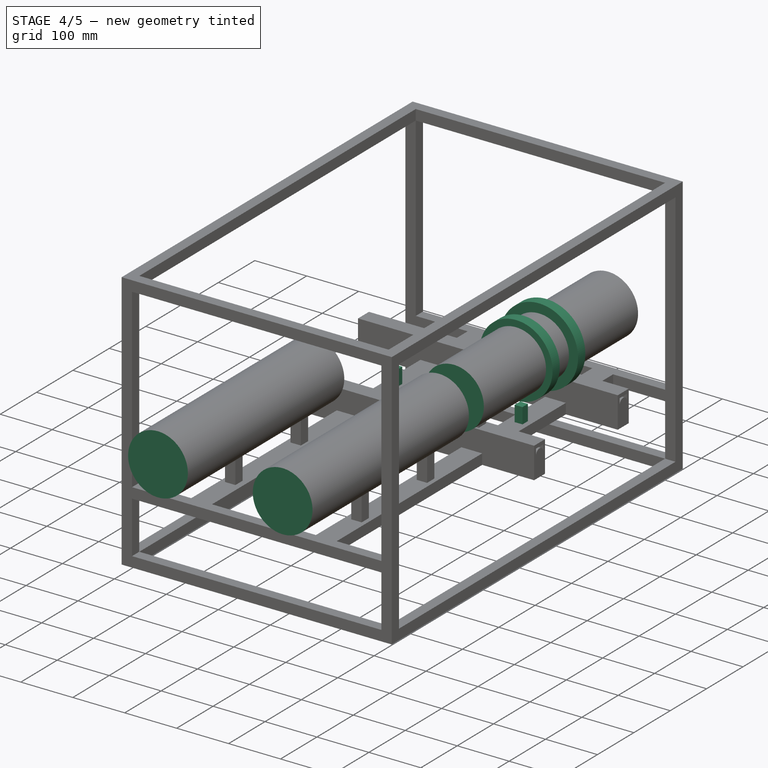
[diagram: stage 4 of 5 — iso view after this stage's code; geometry added in this stage tinted green]
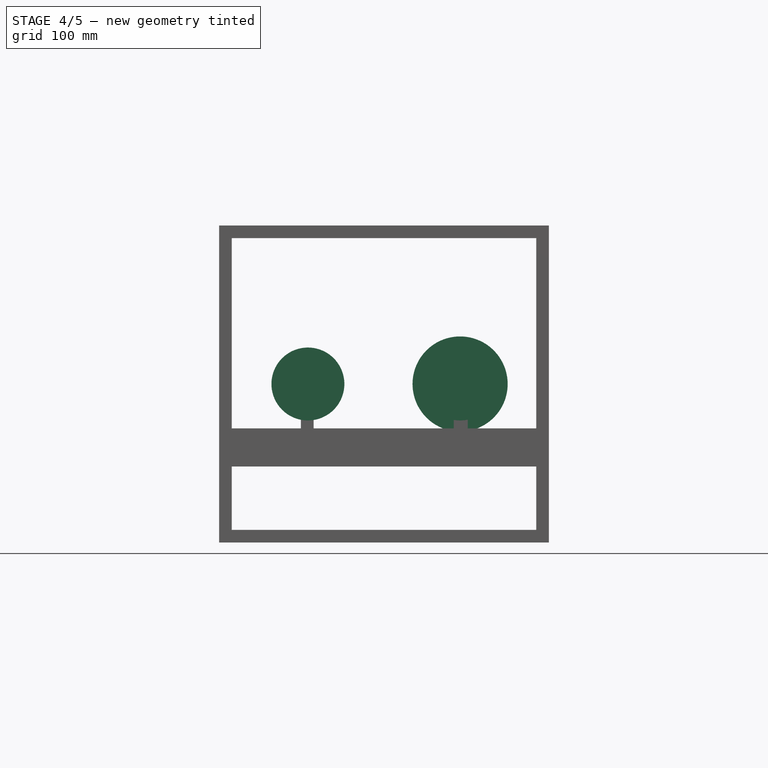
[diagram: stage 4 of 5 — front view after this stage's code; geometry added in this stage tinted green]
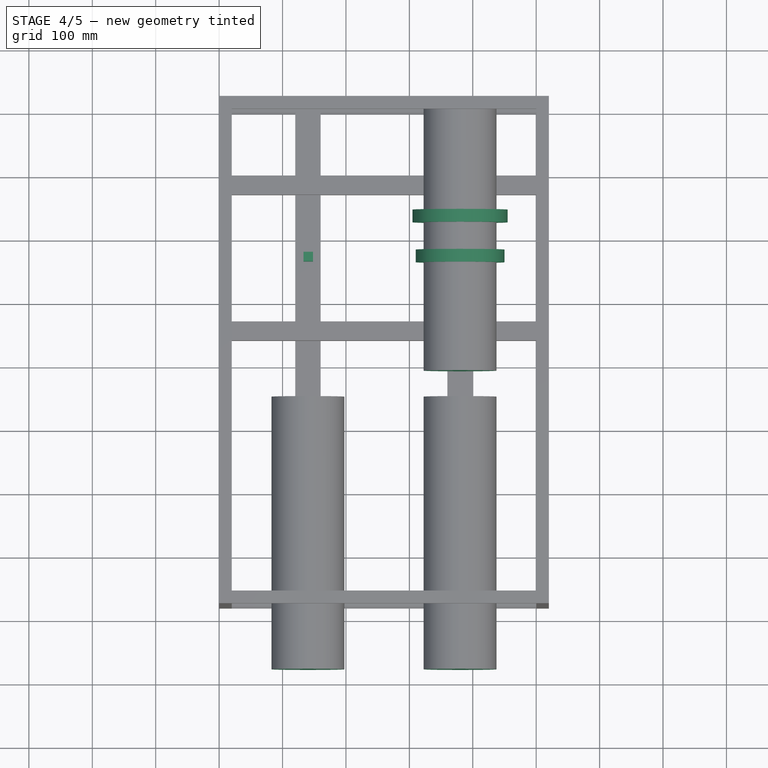
[diagram: stage 4 of 5 — top view after this stage's code; geometry added in this stage tinted green]
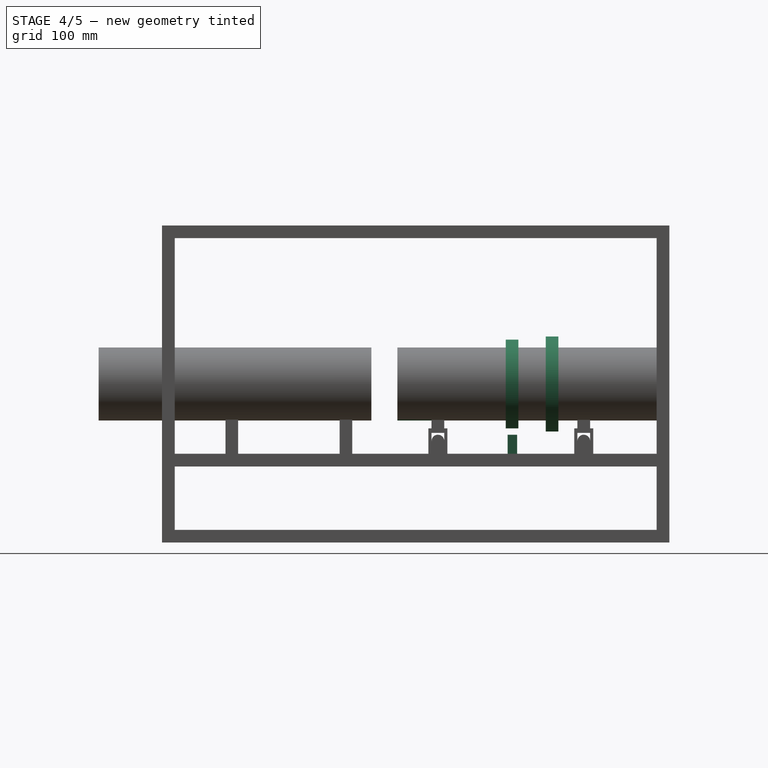
[diagram: stage 4 of 5 — right view after this stage's code; geometry added in this stage tinted green]
FEATURE [PartDesign::Pad] Pad021
  BaseFeature = -> Pad020
  Direction = (0,-1,0)
  Length = 50
  Length2 = 10
  Profile = -> Pad020 [Face7]
  Refine = true
  Suppressed = false
  Type = 0
FEATURE [PartDesign::Pad] Pad022
  BaseFeature = -> Pad021
  Direction = (0,-1,0)
  Length = 30
  Length2 = 10
  Profile = -> Pad021 [Face4,Face87]
  Refine = true
  Suppressed = false
  Type = 0
FEATURE [Sketcher::SketchObject] Sketch017
  ArcFitTolerance = 1e-06
  AttachmentSupport = -> [Pad022]
  FullyConstrained = true
  MakeInternals = false
  MapMode = 5
  Placement = pos=(0,0,140) rot=(0,0,1;0rad)
  sketch-geometry (8):
    g0: LineSegment StartX=-367 StartY=-220 StartZ=0 EndX=-367 EndY=-235 EndZ=0
    g1: LineSegment StartX=-367 StartY=-235 StartZ=0 EndX=-352 EndY=-235 EndZ=0
    g2: LineSegment StartX=-352 StartY=-235 StartZ=0 EndX=-352 EndY=-220 EndZ=0
    g3: LineSegment StartX=-352 StartY=-220 StartZ=0 EndX=-367 EndY=-220 EndZ=0
    g4: LineSegment StartX=-125 StartY=-220 StartZ=0 EndX=-125 EndY=-235 EndZ=0
    g5: LineSegment StartX=-125 StartY=-235 StartZ=0 EndX=-110 EndY=-235 EndZ=0
    g6: LineSegment StartX=-110 StartY=-235 StartZ=0 EndX=-110 EndY=-220 EndZ=0
    g7: LineSegment StartX=-110 StartY=-220 StartZ=0 EndX=-125 EndY=-220 EndZ=0
  constraints (24):
    c: Coincident(g0,g1)
    c: Coincident(g1,g2)
    c: Coincident(g2,g3)
    c: Coincident(g3,g0)
    c: Vertical(g0)
    c: Vertical(g2)
    c: Horizontal(g1)
    c: Horizontal(g3)
    c: Distance(g0,g2) = 15
    c: Distance(g1,g3) = 15
    c: Coincident(g4,g5)
    c: Coincident(g5,g6)
    c: Coincident(g6,g7)
    c: Coincident(g7,g4)
    c: Vertical(g4)
    c: Vertical(g6)
    c: Horizontal(g5)
    c: Horizontal(g7)
    c: Distance(g4,g6) = 15
    c: Distance(g5,g7) = 15
    c: DistanceX(g1,g4) = 227
    c: DistanceY(g1,g4) = 0
    c: DistanceY(g6,g-1) = 220
    c: DistanceX(g6,g-1) = 110
FEATURE [PartDesign::Pad] Pad023
  BaseFeature = -> Pad022
  Direction = (0,0,1)
  Length = 30
  Length2 = 10
  Profile = -> Sketch017
  ReferenceAxis = -> Sketch017 [N_Axis]
  Refine = true
  Suppressed = false
  Type = 0
FEATURE [PartDesign::Plane] DatumPlane
  AttachmentOffset = pos=(0,0,-243) rot=(0,0,1;0rad)
  AttachmentSupport = -> [Pad023]
  Length = 630
  MapMode = 5
  Placement = pos=(0,-228,5.4e-14) rot=(0,0.707107,0.707107;3.14159rad)
  ResizeMode = 0
  Width = 630
FEATURE [Sketcher::SketchObject] Sketch018
  ArcFitTolerance = 1e-06
  AttachmentSupport = -> [DatumPlane]
  FullyConstrained = true
  MakeInternals = false
  MapMode = 5
  Placement = pos=(0,-228,5.4e-14) rot=(0,0.707107,0.707107;3.14159rad)
  sketch-geometry (1):
    g0: Circle CenterX=120 CenterY=250 CenterZ=0 NormalX=0 NormalY=0 NormalZ=1 AngleXU=0 Radius=70
  constraints (3):
    c: DistanceY(g-1,g0) = 250
    c: DistanceX(g-1,g0) = 120
    c: Diameter(g0) = 140
FEATURE [PartDesign::Pad] Pad024
  BaseFeature = -> Pad023
  Direction = (0,1,-2e-16)
  Length = 10
  Length2 = 10
  Profile = -> Sketch018
  ReferenceAxis = -> Sketch018 [N_Axis]
  Refine = true
  Suppressed = false
  Type = 0
FEATURE [PartDesign::Pad] Pad025
  BaseFeature = -> Pad024
  Direction = (0,-1,2e-16)
  Length = 10
  Length2 = 10
  Profile = -> Pad024 [Face111]
  Refine = true
  Suppressed = false
  Type = 0
FEATURE [PartDesign::Plane] DatumPlane001
  AttachmentOffset = pos=(0,0,-180) rot=(0,0,1;0rad)
  AttachmentSupport = -> [Pad025]
  Length = 630
  MapMode = 5
  Placement = pos=(0,-165,4e-14) rot=(0,0.707107,0.707107;3.14159rad)
  ResizeMode = 0
  Width = 630
FEATURE [Sketcher::SketchObject] Sketch019
  ArcFitTolerance = 1e-06
  AttachmentSupport = -> [DatumPlane001]
  FullyConstrained = true
  MakeInternals = false
  MapMode = 5
  Placement = pos=(0,-165,4e-14) rot=(0,0.707107,0.707107;3.14159rad)
  sketch-geometry (1):
    g0: Circle CenterX=120 CenterY=250 CenterZ=0 NormalX=0 NormalY=0 NormalZ=1 AngleXU=0 Radius=75
  constraints (3):
    c: Diameter(g0) = 150
    c: DistanceX(g-1,g0) = 120
    c: DistanceY(g-1,g0) = 250
FEATURE [PartDesign::Pad] Pad026
  BaseFeature = -> Pad025
  Direction = (0,1,-2e-16)
  Length = 10
  Length2 = 10
  Profile = -> Sketch019
  ReferenceAxis = -> Sketch019 [N_Axis]
  Refine = true
  Suppressed = false
  Type = 0
FEATURE [PartDesign::Pad] Pad027
  BaseFeature = -> Pad026
  Direction = (0,-1,0)
  Length = 10
  Length2 = 10
  Profile = -> Pad026 [Face122]
  Refine = true
  Suppressed = false
  Type = 0
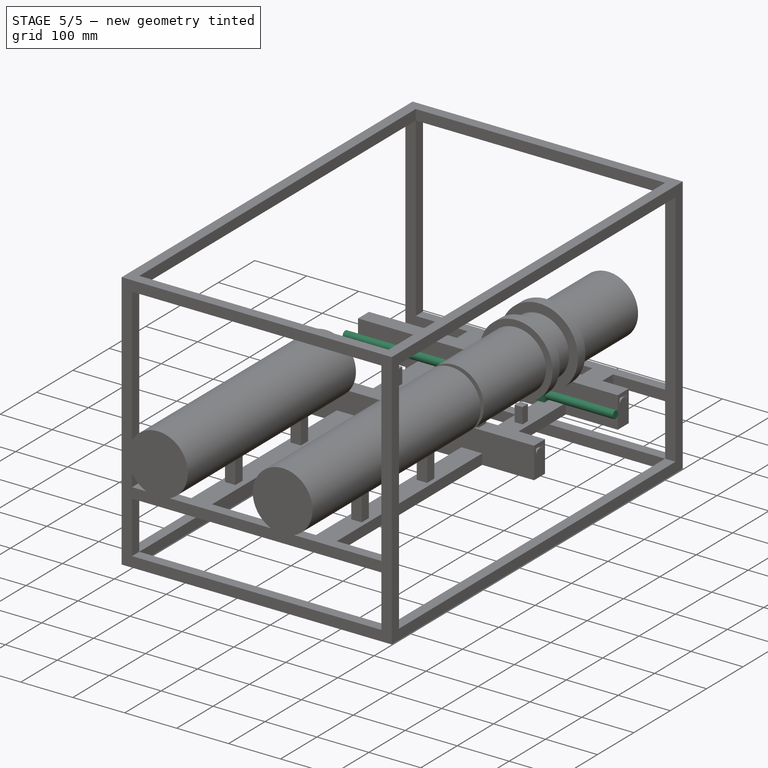
[diagram: stage 5 of 5 — iso view after this stage's code; geometry added in this stage tinted green]
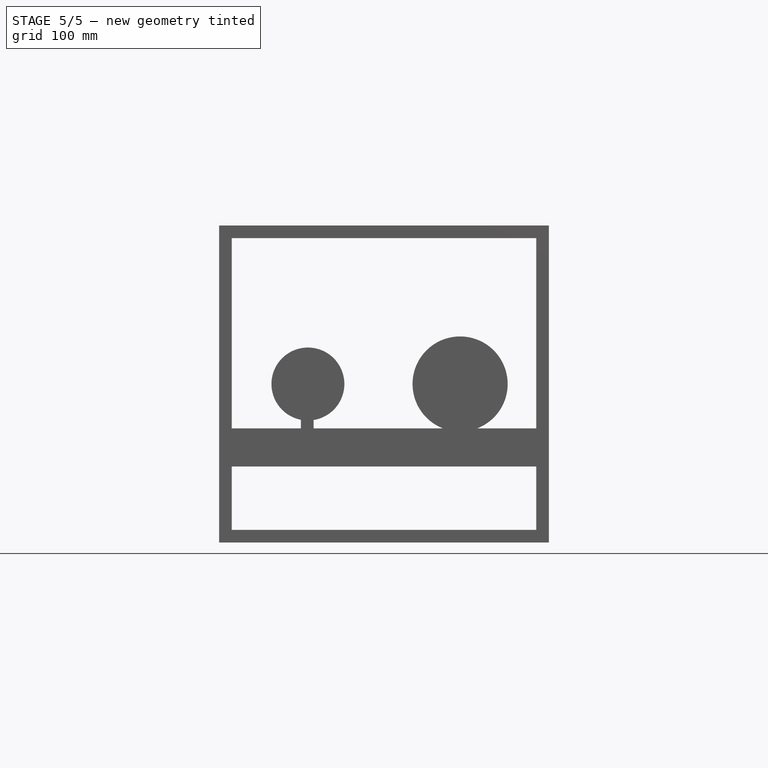
[diagram: stage 5 of 5 — front view after this stage's code; geometry added in this stage tinted green]
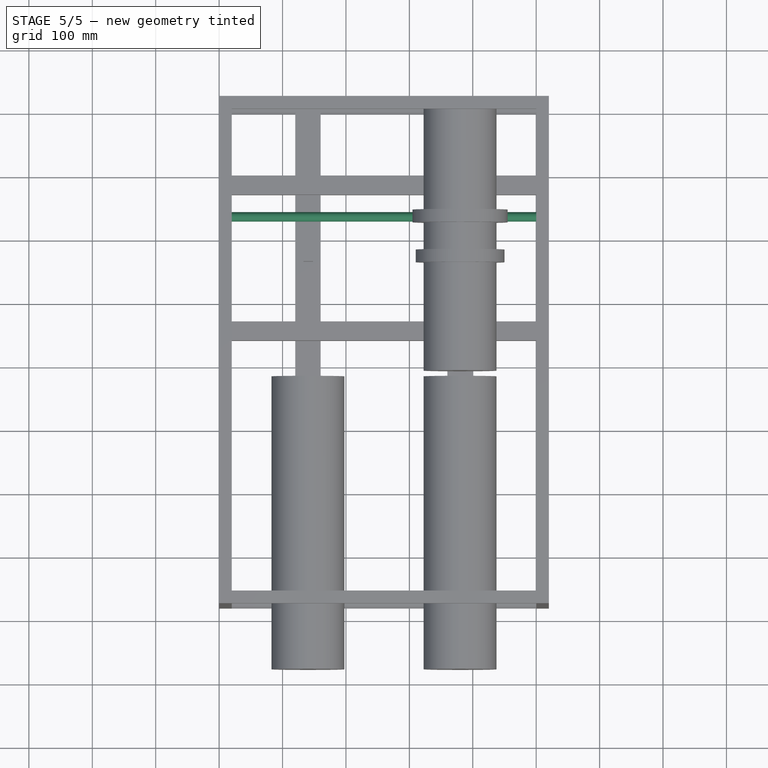
[diagram: stage 5 of 5 — top view after this stage's code; geometry added in this stage tinted green]
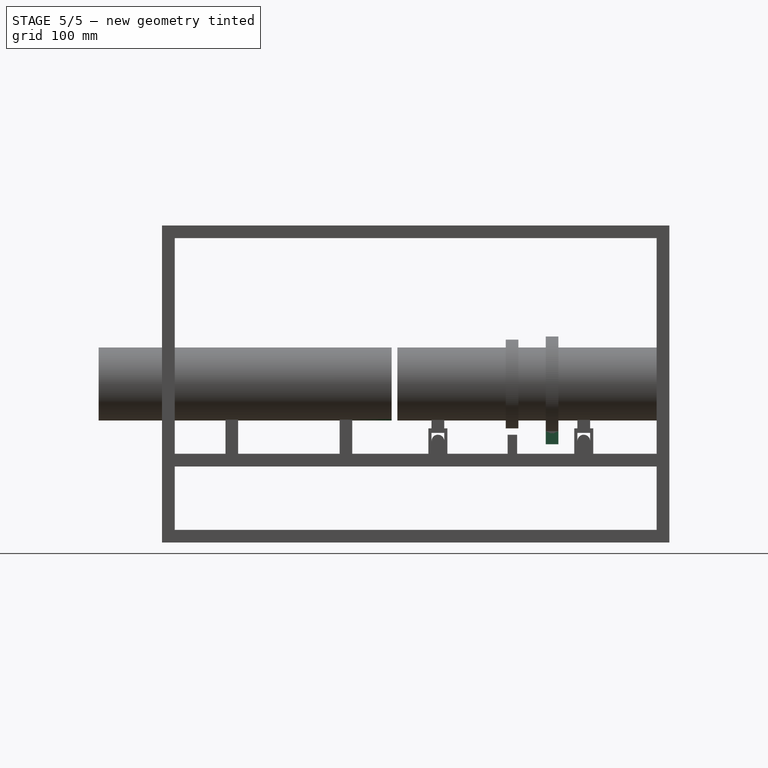
[diagram: stage 5 of 5 — right view after this stage's code; geometry added in this stage tinted green]
FEATURE [Sketcher::SketchObject] Sketch021
  ArcFitTolerance = 1e-06
  FullyConstrained = true
  MakeInternals = false
  MapMode = 5
  Placement = pos=(-110,0,0) rot=(0.57735,0.57735,0.57735;2.0944rad)
  sketch-geometry (1):
    g0: Circle CenterX=-55 CenterY=165 CenterZ=0 NormalX=0 NormalY=0 NormalZ=1 AngleXU=0 Radius=5
  constraints (3):
    c: Diameter(g0) = 10
    c: DistanceY(g-1,g0) = 165
    c: DistanceX(g0,g-1) = 55
FEATURE [PartDesign::Pocket] Pocket
  BaseFeature = -> Pad027
  Direction = (-1,0,0)
  Length = 20
  Length2 = 5
  Profile = -> Sketch021
  ReferenceAxis = -> Sketch021 [N_Axis]
  Refine = true
  Suppressed = false
  Type = 0
FEATURE [Sketcher::SketchObject] Sketch022
  ArcFitTolerance = 1e-06
  AttachmentSupport = -> [DatumPlane001]
  FullyConstrained = true
  MakeInternals = false
  MapMode = 5
  Placement = pos=(0,-165,4e-14) rot=(0,0.707107,0.707107;3.14159rad)
  sketch-geometry (1):
    g0: Circle CenterX=120 CenterY=250 CenterZ=0 NormalX=0 NormalY=0 NormalZ=1 AngleXU=0 Radius=75
  constraints (3):
    c: Diameter(g0) = 150
    c: DistanceX(g-1,g0) = 120
    c: DistanceY(g-1,g0) = 250
FEATURE [Sketcher::SketchObject] Sketch023
  ArcFitTolerance = 1e-06
  AttachmentSupport = -> [Pocket]
  FullyConstrained = true
  MakeInternals = false
  MapMode = 5
  Placement = pos=(0,-155,0) rot=(0,0.707107,0.707107;3.14159rad)
  sketch-geometry (4):
    g0: LineSegment StartX=110 StartY=185 StartZ=0 EndX=110 EndY=155 EndZ=0
    g1: LineSegment StartX=110 StartY=155 StartZ=0 EndX=130 EndY=155 EndZ=0
    g2: LineSegment StartX=130 StartY=155 StartZ=0 EndX=130 EndY=185 EndZ=0
    g3: LineSegment StartX=130 StartY=185 StartZ=0 EndX=110 EndY=185 EndZ=0
  constraints (12):
    c: Coincident(g0,g1)
    c: Coincident(g1,g2)
    c: Coincident(g2,g3)
    c: Coincident(g3,g0)
    c: Vertical(g0)
    c: Vertical(g2)
    c: Horizontal(g1)
    c: Horizontal(g3)
    c: Distance(g0,g2) = 20
    c: Distance(g1,g3) = 30
    c: DistanceY(g-1,g0) = 155
    c: DistanceX(g-1,g0) = 110
FEATURE [PartDesign::Pad] Pad028
  BaseFeature = -> Pocket
  Direction = (0,1,-2e-16)
  Length = 20
  Length2 = 10
  Profile = -> Sketch023
  ReferenceAxis = -> Sketch023 [N_Axis]
  Refine = true
  Reversed = true
  Suppressed = false
  Type = 0
FEATURE [Sketcher::SketchObject] Sketch024
  ArcFitTolerance = 1e-06
  AttachmentSupport = -> [Pad028]
  FullyConstrained = true
  MakeInternals = false
  MapMode = 5
  Placement = pos=(-110,0,0) rot=(0.57735,0.57735,0.57735;2.0944rad)
  sketch-geometry (1):
    g0: Circle CenterX=-165 CenterY=165 CenterZ=0 NormalX=0 NormalY=0 NormalZ=1 AngleXU=0 Radius=7.5
  constraints (3):
    c: Diameter(g0) = 15
    c: DistanceX(g0,g-1) = 165
    c: DistanceY(g-1,g0) = 165
FEATURE [PartDesign::Pad] Pad029
  BaseFeature = -> Pad028
  Direction = (1,0,0)
  Length = 200
  Length2 = 10
  Profile = -> Sketch024
  ReferenceAxis = -> Sketch024 [N_Axis]
  Refine = true
  Suppressed = false
  Type = 0
FEATURE [PartDesign::Pad] Pad030
  BaseFeature = -> Pad029
  Direction = (1,0,0)
  Length = 700
  Length2 = 10
  Profile = -> Pad029 [Face10]
  Refine = true
  Reversed = true
  Suppressed = false
  Type = 0
FEATURE [PartDesign::Pocket] Pocket001
  BaseFeature = -> Pad030
  Direction = (-1,0,0)
  Length = 70
  Length2 = 5
  Profile = -> Pad030 [Face10]
  Refine = true
  Suppressed = false
  Type = 0
FEATURE [PartDesign::Pocket] Pocket002
  BaseFeature = -> Pocket001
  Direction = (1,0,0)
  Length = 110
  Length2 = 5
  Profile = -> Pocket001 [Face18]
  Refine = true
  Suppressed = false
  Type = 0
FEATURE [PartDesign::Pad] Pad031
  BaseFeature = -> Pocket002
  Direction = (0,1,0)
  Length = 32
  Length2 = 10
  Profile = -> Pocket002 [Face129,Face127]
  Refine = true
  Suppressed = false
  Type = 0
FEATURE [PartDesign::Body] Body
  AllowCompound = false
  Group = -> [Sketch,Pad,Sketch001,Pad001,Sketch002,Pad002,Sketch003,Pad003,Sketch004,Pad004,Sketch005,Pad005,Sketch006,Pad006,Sketch007,Pad007,Sketch008,Pad008,Pad009,Sketch009,Pad010,Pad011,Sketch010,Pad012,Sketch011,Pad013,Sketch012,Pad014,Sketch013,Pad015,Pad016,Sketch014,Pad017,Sketch015,Pad018,Sketch016,Pad019,Pad020,Pad021,Pad022,Sketch017,Pad023,DatumPlane,Sketch018,Pad024,Pad025,DatumPlane001,+14 more]
  Origin = -> Origin
  Tip = -> Pad031
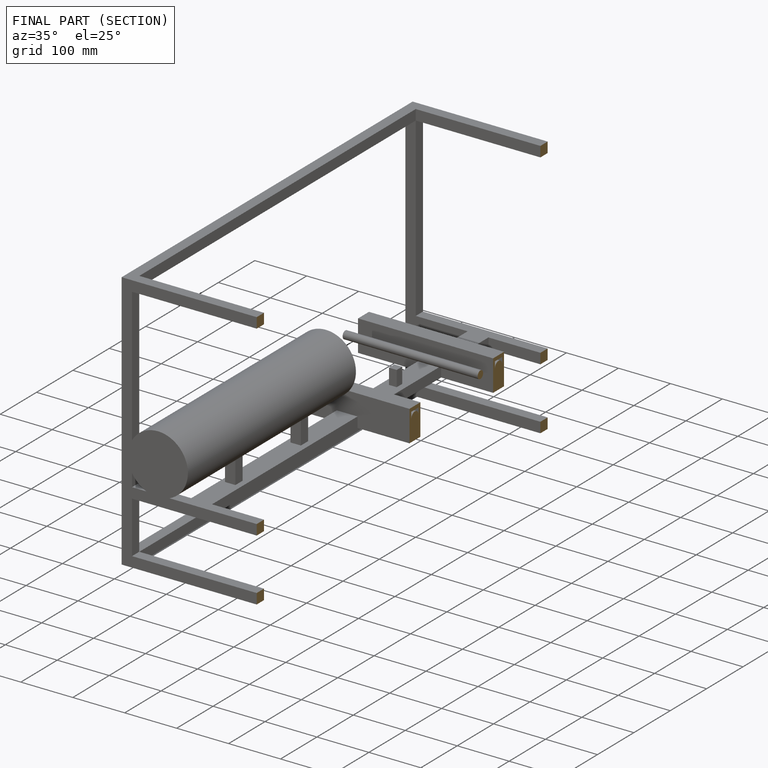
[diagram: finished part — half-section view (interior)]
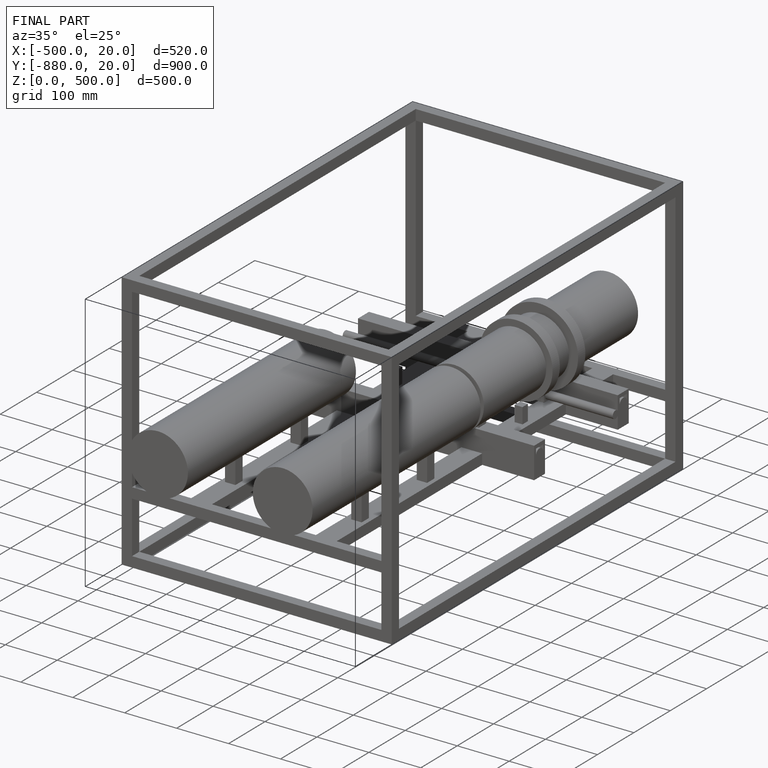
[diagram: finished part — iso view with bounding-box wireframe]
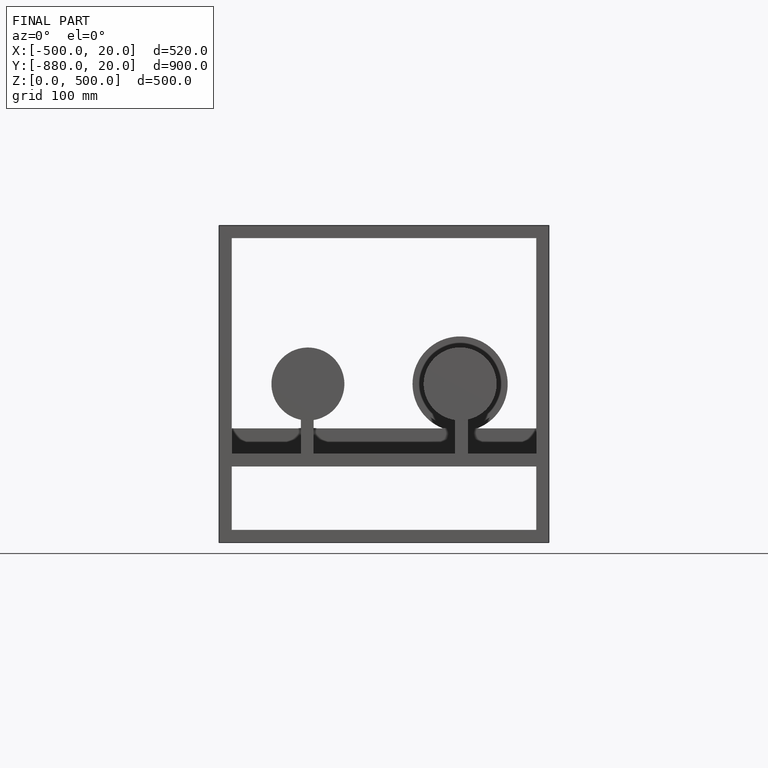
[diagram: finished part — front view with bounding-box wireframe]
